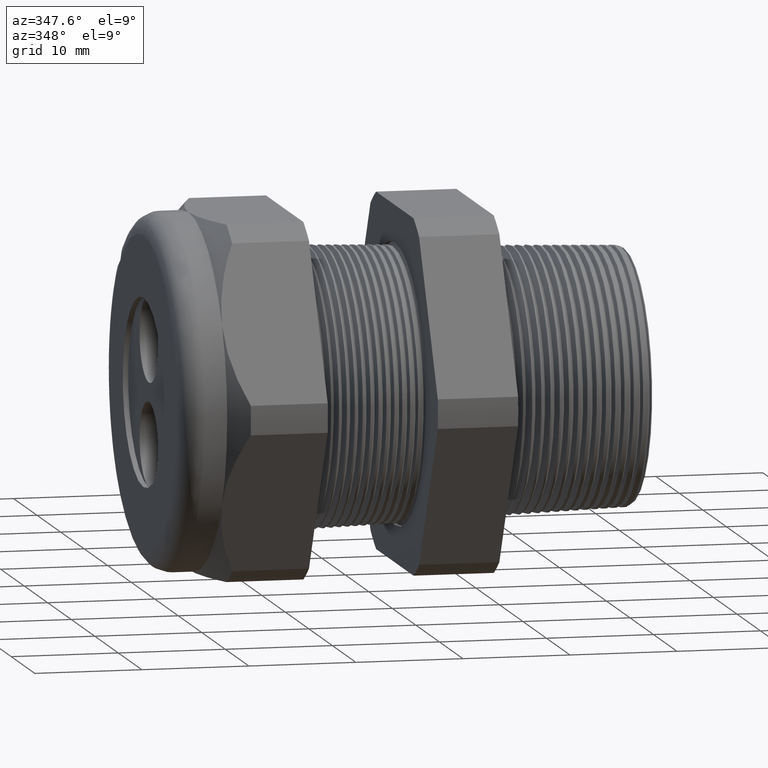
[diagram: clean part render]
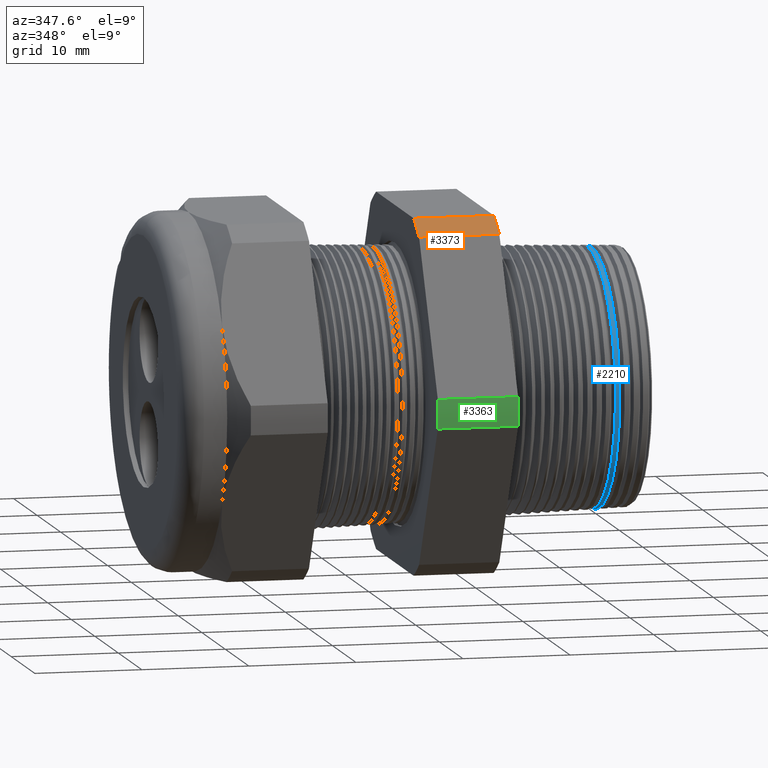
[diagram: same view with three faces highlighted in distinct colors, each labeled with its STEP entity id]
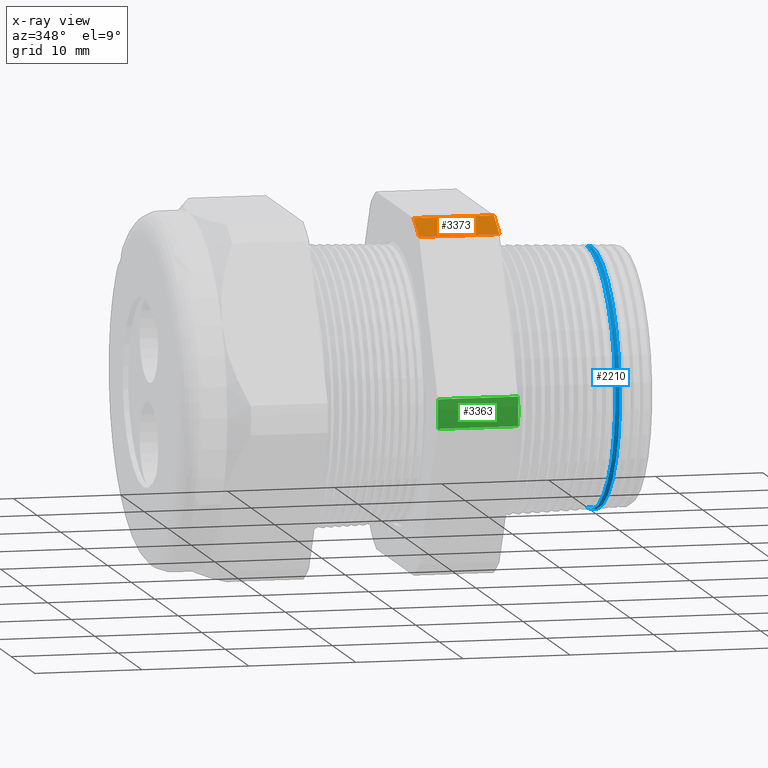
[diagram: x-ray of the same camera — body ghosted, the three highlighted faces saturated]
A machine part, auxiliary view with three faces highlighted in distinct colors.
The next image is the same camera in x-ray (body ghosted, the three faces saturated) — at least one of them is partly hidden behind the body in this view.
Their STEP definitions:

[orange] entity #3373 — the highlighted cylindrical surface (partial cylindrical patch) has radius 18.3261 mm, axis along (-1, 0, 0).
#860 = CARTESIAN_POINT ( 'NONE',  ( -0.6052755905511810800, -0.3131489262315937400, 0.6500000000000000200 ) ) ;
#861 = DIRECTION ( 'NONE',  ( 0.0000000000000000000, 0.0000000000000000000, 1.000000000000000000 ) ) ;
#862 = DIRECTION ( 'NONE',  ( -1.000000000000000000, 0.0000000000000000000, 0.0000000000000000000 ) ) ;
#863 = CARTESIAN_POINT ( 'NONE',  ( -0.6052755905511810800, 0.0000000000000000000, 0.0000000000000000000 ) ) ;
#864 = AXIS2_PLACEMENT_3D ( 'NONE', #863, #862, #861 ) ;
#865 = CIRCLE ( 'NONE', #864, 0.7215000000000000300 ) ;
#866 = CARTESIAN_POINT ( 'NONE',  ( -0.6052755905511810800, -0.4063420493440885700, 0.5961949252843791200 ) ) ;
#892 = LINE ( 'NONE', #955, #954 ) ;
#946 = DIRECTION ( 'NONE',  ( 0.0000000000000000000, 0.0000000000000000000, 1.000000000000000000 ) ) ;
#947 = DIRECTION ( 'NONE',  ( -1.000000000000000000, 0.0000000000000000000, 0.0000000000000000000 ) ) ;
#948 = CARTESIAN_POINT ( 'NONE',  ( 0.2400000000000001900, 0.0000000000000000000, 0.0000000000000000000 ) ) ;
#949 = AXIS2_PLACEMENT_3D ( 'NONE', #948, #947, #946 ) ;
#950 = CYLINDRICAL_SURFACE ( 'NONE', #949, 0.7215000000000000300 ) ;
#952 = FACE_OUTER_BOUND ( 'NONE', #3374, .T. ) ;
#953 = DIRECTION ( 'NONE',  ( -1.000000000000000000, 0.0000000000000000000, 0.0000000000000000000 ) ) ;
#954 = VECTOR ( 'NONE', #953, 39.37007874015748100 ) ;
#955 = CARTESIAN_POINT ( 'NONE',  ( 0.2400000000000001900, -0.3131489262315937400, 0.6500000000000000200 ) ) ;
#1135 = VERTEX_POINT ( 'NONE', #4149 ) ;
#1163 = EDGE_CURVE ( 'NONE', #1135, #1164, #4225, .T. ) ;
#1164 = VERTEX_POINT ( 'NONE', #4220 ) ;
#1994 = EDGE_CURVE ( 'NONE', #1164, #3347, #4489, .T. ) ;
#3347 = VERTEX_POINT ( 'NONE', #866 ) ;
#3349 = EDGE_CURVE ( 'NONE', #3347, #3350, #865, .T. ) ;
#3350 = VERTEX_POINT ( 'NONE', #860 ) ;
#3371 = EDGE_CURVE ( 'NONE', #1135, #3350, #892, .T. ) ;
#3373 = ADVANCED_FACE ( 'NONE', ( #952 ), #950, .T. ) ;
#3374 = EDGE_LOOP ( 'NONE', ( #3375, #3376, #3377, #3431 ) ) ;
#3375 = ORIENTED_EDGE ( 'NONE', *, *, #3371, .T. ) ;
#3376 = ORIENTED_EDGE ( 'NONE', *, *, #3349, .F. ) ;
#3377 = ORIENTED_EDGE ( 'NONE', *, *, #1994, .F. ) ;
#3431 = ORIENTED_EDGE ( 'NONE', *, *, #1163, .F. ) ;
#4149 = CARTESIAN_POINT ( 'NONE',  ( -0.3100000000000000000, -0.3131489262315937400, 0.6500000000000000200 ) ) ;
#4220 = CARTESIAN_POINT ( 'NONE',  ( -0.3100000000000000000, -0.4063420493440885700, 0.5961949252843791200 ) ) ;
#4221 = DIRECTION ( 'NONE',  ( 0.0000000000000000000, 0.0000000000000000000, -1.000000000000000000 ) ) ;
#4222 = DIRECTION ( 'NONE',  ( 1.000000000000000000, 0.0000000000000000000, 0.0000000000000000000 ) ) ;
#4223 = CARTESIAN_POINT ( 'NONE',  ( -0.3100000000000000000, 0.0000000000000000000, 0.0000000000000000000 ) ) ;
#4224 = AXIS2_PLACEMENT_3D ( 'NONE', #4223, #4222, #4221 ) ;
#4225 = CIRCLE ( 'NONE', #4224, 0.7215000000000000300 ) ;
#4476 = DIRECTION ( 'NONE',  ( -1.000000000000000000, 0.0000000000000000000, 0.0000000000000000000 ) ) ;
#4477 = VECTOR ( 'NONE', #4476, 39.37007874015748100 ) ;
#4478 = CARTESIAN_POINT ( 'NONE',  ( 0.2400000000000001900, -0.4063420493440885700, 0.5961949252843791200 ) ) ;
#4489 = LINE ( 'NONE', #4478, #4477 ) ;

[blue] entity #2210 — the highlighted conical surface has half-angle 2 deg.
#509 = CARTESIAN_POINT ( 'NONE',  ( 0.1179459735222785200, 5.827961725054909400E-017, -0.4756002599919355000 ) ) ;
#611 = CARTESIAN_POINT ( 'NONE',  ( 0.1179459735222785200, 0.0000000000000000000, 0.4756002599919353900 ) ) ;
#742 = CARTESIAN_POINT ( 'NONE',  ( 0.1013982640682507800, 5.831500089382092400E-017, -0.4761781187393956900 ) ) ;
#748 = CARTESIAN_POINT ( 'NONE',  ( 0.1013982640682507800, 0.0000000000000000000, 0.4761781187393956900 ) ) ;
#1972 = EDGE_CURVE ( 'NONE', #3201, #3264, #4418, .T. ) ;
#1978 = EDGE_CURVE ( 'NONE', #3156, #3267, #4404, .T. ) ;
#2135 = EDGE_CURVE ( 'NONE', #3267, #3264, #4762, .T. ) ;
#2208 = ORIENTED_EDGE ( 'NONE', *, *, #1978, .F. ) ;
#2209 = EDGE_CURVE ( 'NONE', #3201, #3156, #4845, .T. ) ;
#2210 = ADVANCED_FACE ( 'NONE', ( #4840 ), #4839, .T. ) ;
#2211 = ORIENTED_EDGE ( 'NONE', *, *, #2209, .F. ) ;
#2214 = ORIENTED_EDGE ( 'NONE', *, *, #1972, .T. ) ;
#2218 = EDGE_LOOP ( 'NONE', ( #2208, #2211, #2214, #2310 ) ) ;
#2310 = ORIENTED_EDGE ( 'NONE', *, *, #2135, .F. ) ;
#3156 = VERTEX_POINT ( 'NONE', #509 ) ;
#3201 = VERTEX_POINT ( 'NONE', #611 ) ;
#3264 = VERTEX_POINT ( 'NONE', #748 ) ;
#3267 = VERTEX_POINT ( 'NONE', #742 ) ;
#4401 = DIRECTION ( 'NONE',  ( -0.9993908270190959800, 4.273955692856263600E-018, -0.03489949670249379400 ) ) ;
#4402 = VECTOR ( 'NONE', #4401, 39.37007874015748100 ) ;
#4403 = CARTESIAN_POINT ( 'NONE',  ( 0.2400000000000001000, 5.772226213505909400E-017, -0.4713380394677679800 ) ) ;
#4404 = LINE ( 'NONE', #4403, #4402 ) ;
#4415 = DIRECTION ( 'NONE',  ( -0.9993908270190959800, 0.0000000000000000000, 0.03489949670249379400 ) ) ;
#4416 = VECTOR ( 'NONE', #4415, 39.37007874015748100 ) ;
#4417 = CARTESIAN_POINT ( 'NONE',  ( 0.2400000000000001000, 0.0000000000000000000, 0.4713380394677679800 ) ) ;
#4418 = LINE ( 'NONE', #4417, #4416 ) ;
#4759 = DIRECTION ( 'NONE',  ( 0.0000000000000000000, 0.0000000000000000000, -1.000000000000000000 ) ) ;
#4760 = DIRECTION ( 'NONE',  ( -1.000000000000000000, 0.0000000000000000000, 0.0000000000000000000 ) ) ;
#4761 = AXIS2_PLACEMENT_3D ( 'NONE', #4767, #4760, #4759 ) ;
#4762 = CIRCLE ( 'NONE', #4761, 0.4761781187393956900 ) ;
#4767 = CARTESIAN_POINT ( 'NONE',  ( 0.1013982640682507800, 0.0000000000000000000, 0.0000000000000000000 ) ) ;
#4835 = DIRECTION ( 'NONE',  ( 0.0000000000000000000, 0.0000000000000000000, 1.000000000000000000 ) ) ;
#4836 = DIRECTION ( 'NONE',  ( -1.000000000000000000, 0.0000000000000000000, 0.0000000000000000000 ) ) ;
#4837 = CARTESIAN_POINT ( 'NONE',  ( 0.2400000000000001000, 0.0000000000000000000, 0.0000000000000000000 ) ) ;
#4838 = AXIS2_PLACEMENT_3D ( 'NONE', #4837, #4836, #4835 ) ;
#4839 = CONICAL_SURFACE ( 'NONE', #4838, 0.4713380394677679800, 0.03490658503987940900 ) ;
#4840 = FACE_OUTER_BOUND ( 'NONE', #2218, .T. ) ;
#4841 = DIRECTION ( 'NONE',  ( 0.0000000000000000000, 0.0000000000000000000, 1.000000000000000000 ) ) ;
#4842 = DIRECTION ( 'NONE',  ( 1.000000000000000000, 0.0000000000000000000, 0.0000000000000000000 ) ) ;
#4843 = CARTESIAN_POINT ( 'NONE',  ( 0.1179459735222785200, 0.0000000000000000000, 0.0000000000000000000 ) ) ;
#4844 = AXIS2_PLACEMENT_3D ( 'NONE', #4843, #4842, #4841 ) ;
#4845 = CIRCLE ( 'NONE', #4844, 0.4756002599919353900 ) ;

[green] entity #3363 — the highlighted cylindrical surface (partial cylindrical patch) has radius 18.3261 mm, axis along (-1, 0, 0).
#766 = CARTESIAN_POINT ( 'NONE',  ( -0.6052755905511810800, -0.7194909755756819800, 0.05380507471562025900 ) ) ;
#767 = CARTESIAN_POINT ( 'NONE',  ( -0.6052755905511810800, -0.7194909755756819800, -0.05380507471562082100 ) ) ;
#871 = DIRECTION ( 'NONE',  ( 0.0000000000000000000, 0.0000000000000000000, 1.000000000000000000 ) ) ;
#872 = DIRECTION ( 'NONE',  ( -1.000000000000000000, 0.0000000000000000000, 0.0000000000000000000 ) ) ;
#873 = CARTESIAN_POINT ( 'NONE',  ( -0.6052755905511810800, 0.0000000000000000000, 0.0000000000000000000 ) ) ;
#874 = AXIS2_PLACEMENT_3D ( 'NONE', #873, #872, #871 ) ;
#875 = CIRCLE ( 'NONE', #874, 0.7215000000000000300 ) ;
#898 = DIRECTION ( 'NONE',  ( 0.0000000000000000000, 0.0000000000000000000, 1.000000000000000000 ) ) ;
#899 = DIRECTION ( 'NONE',  ( -1.000000000000000000, 0.0000000000000000000, 0.0000000000000000000 ) ) ;
#900 = CARTESIAN_POINT ( 'NONE',  ( 0.2400000000000001900, 0.0000000000000000000, 0.0000000000000000000 ) ) ;
#901 = AXIS2_PLACEMENT_3D ( 'NONE', #900, #899, #898 ) ;
#902 = CYLINDRICAL_SURFACE ( 'NONE', #901, 0.7215000000000000300 ) ;
#904 = FACE_OUTER_BOUND ( 'NONE', #3364, .T. ) ;
#905 = DIRECTION ( 'NONE',  ( -1.000000000000000000, 0.0000000000000000000, 0.0000000000000000000 ) ) ;
#906 = VECTOR ( 'NONE', #905, 39.37007874015748100 ) ;
#907 = CARTESIAN_POINT ( 'NONE',  ( 0.2400000000000001900, -0.7194909755756819800, 0.05380507471562025900 ) ) ;
#912 = LINE ( 'NONE', #907, #906 ) ;
#960 = DIRECTION ( 'NONE',  ( -1.000000000000000000, 0.0000000000000000000, 0.0000000000000000000 ) ) ;
#961 = VECTOR ( 'NONE', #960, 39.37007874015748100 ) ;
#962 = CARTESIAN_POINT ( 'NONE',  ( 0.2400000000000001900, -0.7194909755756819800, -0.05380507471562082100 ) ) ;
#963 = LINE ( 'NONE', #962, #961 ) ;
#2284 = VERTEX_POINT ( 'NONE', #4992 ) ;
#2293 = VERTEX_POINT ( 'NONE', #5041 ) ;
#2297 = EDGE_CURVE ( 'NONE', #2284, #2293, #5030, .T. ) ;
#3285 = VERTEX_POINT ( 'NONE', #767 ) ;
#3287 = VERTEX_POINT ( 'NONE', #766 ) ;
#3344 = EDGE_CURVE ( 'NONE', #3285, #3287, #875, .T. ) ;
#3361 = EDGE_CURVE ( 'NONE', #2284, #3287, #912, .T. ) ;
#3363 = ADVANCED_FACE ( 'NONE', ( #904 ), #902, .T. ) ;
#3364 = EDGE_LOOP ( 'NONE', ( #3365, #3366, #3419, #3421 ) ) ;
#3365 = ORIENTED_EDGE ( 'NONE', *, *, #3361, .T. ) ;
#3366 = ORIENTED_EDGE ( 'NONE', *, *, #3344, .F. ) ;
#3419 = ORIENTED_EDGE ( 'NONE', *, *, #3420, .F. ) ;
#3420 = EDGE_CURVE ( 'NONE', #2293, #3285, #963, .T. ) ;
#3421 = ORIENTED_EDGE ( 'NONE', *, *, #2297, .F. ) ;
#4992 = CARTESIAN_POINT ( 'NONE',  ( -0.3100000000000000000, -0.7194909755756819800, 0.05380507471562025900 ) ) ;
#5026 = DIRECTION ( 'NONE',  ( 0.0000000000000000000, 0.0000000000000000000, -1.000000000000000000 ) ) ;
#5027 = DIRECTION ( 'NONE',  ( 1.000000000000000000, 0.0000000000000000000, 0.0000000000000000000 ) ) ;
#5028 = CARTESIAN_POINT ( 'NONE',  ( -0.3100000000000000000, 0.0000000000000000000, 0.0000000000000000000 ) ) ;
#5029 = AXIS2_PLACEMENT_3D ( 'NONE', #5028, #5027, #5026 ) ;
#5030 = CIRCLE ( 'NONE', #5029, 0.7215000000000000300 ) ;
#5041 = CARTESIAN_POINT ( 'NONE',  ( -0.3100000000000000000, -0.7194909755756819800, -0.05380507471562082100 ) ) ;